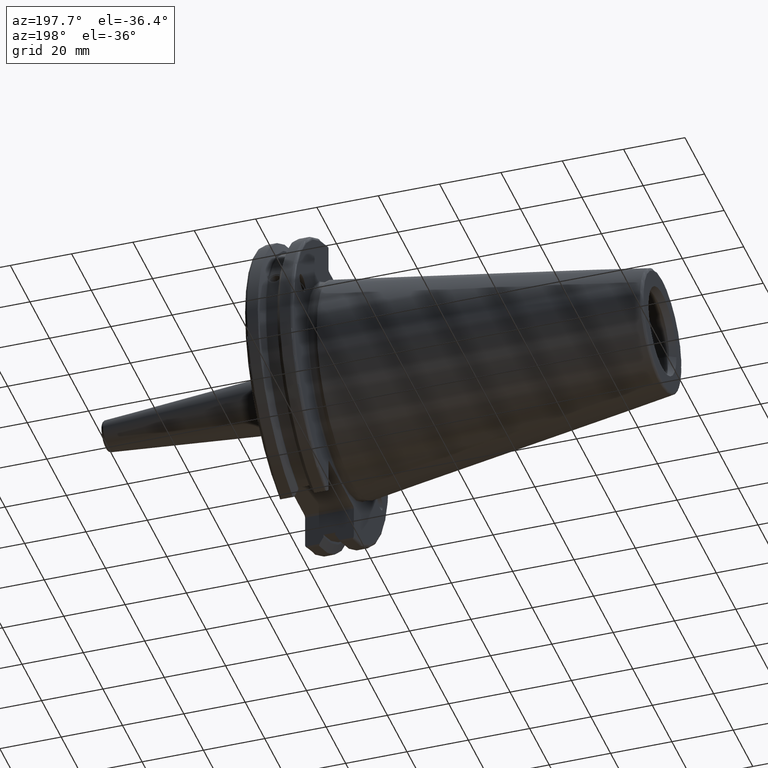
[diagram: clean part render]
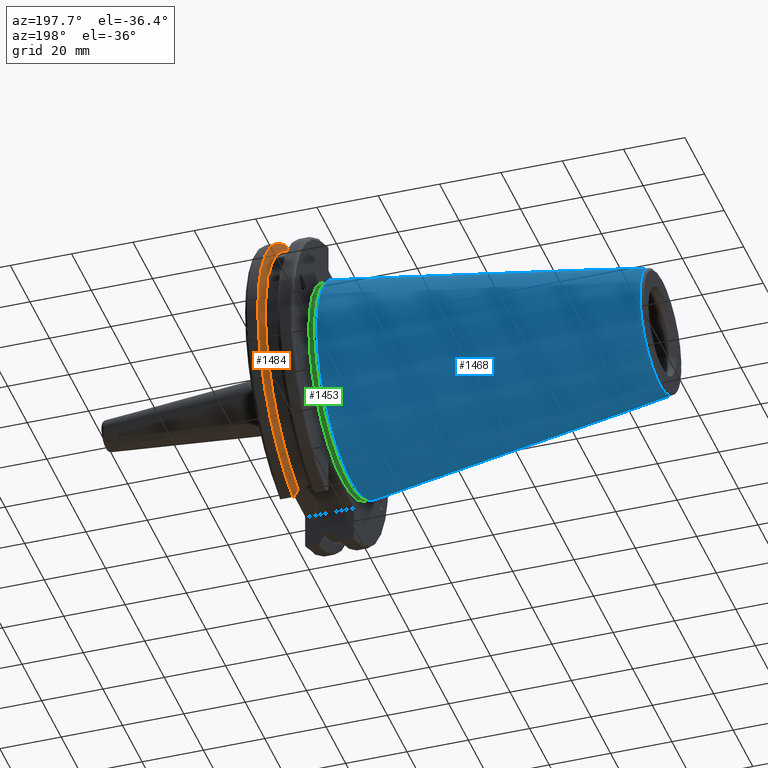
[diagram: same view with three faces highlighted in distinct colors, each labeled with its STEP entity id]
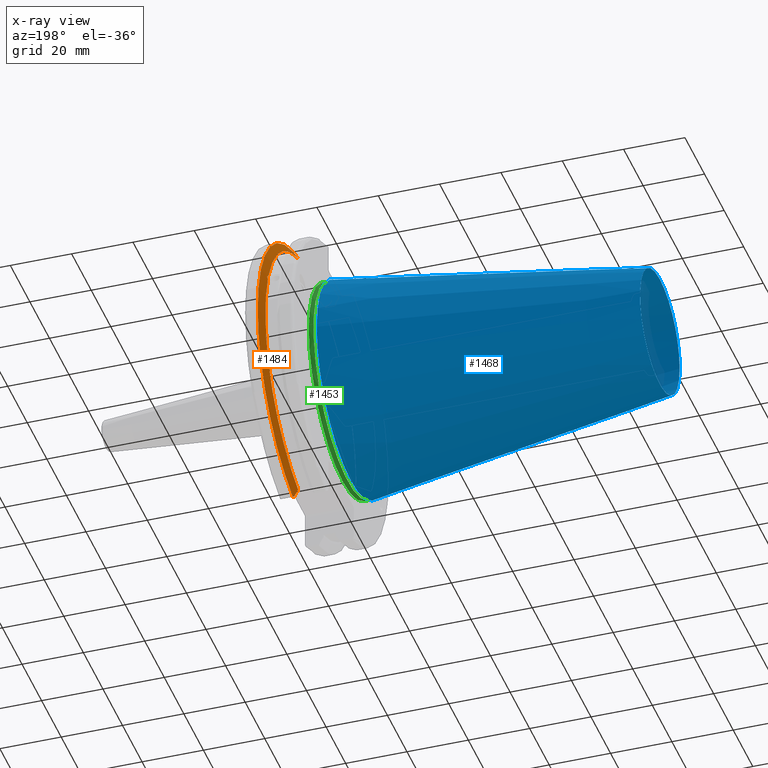
[diagram: x-ray of the same camera — body ghosted, the three highlighted faces saturated]
A machine part, auxiliary view with three faces highlighted in distinct colors.
The next image is the same camera in x-ray (body ghosted, the three faces saturated) — at least one of them is partly hidden behind the body in this view.
Their STEP definitions:

[orange] entity #1484 — the highlighted conical surface has half-angle 60 deg.
#23=(
BOUNDED_CURVE()
B_SPLINE_CURVE(2,(#2764,#2765,#2766),.UNSPECIFIED.,.F.,.F.)
B_SPLINE_CURVE_WITH_KNOTS((3,3),(0.325260944932521,0.390084992222202),
 .UNSPECIFIED.)
CURVE()
GEOMETRIC_REPRESENTATION_ITEM()
RATIONAL_B_SPLINE_CURVE((1.00019140645994,1.00011477674864,1.))
REPRESENTATION_ITEM('')
);
#24=(
BOUNDED_CURVE()
B_SPLINE_CURVE(2,(#2778,#2779,#2780),.UNSPECIFIED.,.F.,.F.)
B_SPLINE_CURVE_WITH_KNOTS((3,3),(0.0558332664532001,0.331657177124504),
 .UNSPECIFIED.)
CURVE()
GEOMETRIC_REPRESENTATION_ITEM()
RATIONAL_B_SPLINE_CURVE((1.00012873636632,1.00038235574022,1.))
REPRESENTATION_ITEM('')
);
#29=(
BOUNDED_CURVE()
B_SPLINE_CURVE(2,(#2943,#2944,#2945),.UNSPECIFIED.,.F.,.F.)
B_SPLINE_CURVE_WITH_KNOTS((3,3),(0.,0.275823910671402),.UNSPECIFIED.)
CURVE()
GEOMETRIC_REPRESENTATION_ITEM()
RATIONAL_B_SPLINE_CURVE((1.,1.00038235574129,1.00012873636668))
REPRESENTATION_ITEM('')
);
#30=(
BOUNDED_CURVE()
B_SPLINE_CURVE(2,(#2960,#2961,#2962),.UNSPECIFIED.,.F.,.F.)
B_SPLINE_CURVE_WITH_KNOTS((3,3),(0.,0.0648240472897064),.UNSPECIFIED.)
CURVE()
GEOMETRIC_REPRESENTATION_ITEM()
RATIONAL_B_SPLINE_CURVE((1.,1.00011477674844,1.00019140645961))
REPRESENTATION_ITEM('')
);
#50=B_SPLINE_CURVE_WITH_KNOTS('',3,(#2568,#2569,#2570,#2571,#2572,#2573,
#2574,#2575),.UNSPECIFIED.,.F.,.F.,(4,2,2,4),(0.426712868358719,0.441644498666905,
0.480313313223129,0.518982127779353),.UNSPECIFIED.);
#54=B_SPLINE_CURVE_WITH_KNOTS('',3,(#2630,#2631,#2632,#2633,#2634,#2635,
#2636,#2637),.UNSPECIFIED.,.F.,.F.,(4,2,2,4),(0.518982127779353,0.557650942335576,
0.5963197568918,0.611251387199989),.UNSPECIFIED.);
#344=CONICAL_SURFACE('',#1655,47.8172386482472,1.0471975511966);
#418=FACE_OUTER_BOUND('',#517,.T.);
#517=EDGE_LOOP('',(#1346,#1347,#1348,#1349,#1350,#1351,#1352,#1353,#1354));
#570=CIRCLE('',#1592,46.4219772964944);
#592=CIRCLE('',#1648,49.2125);
#595=CIRCLE('',#1656,46.4219772964944);
#670=VERTEX_POINT('',#2565);
#671=VERTEX_POINT('',#2567);
#678=VERTEX_POINT('',#2628);
#687=VERTEX_POINT('',#2670);
#713=VERTEX_POINT('',#2761);
#714=VERTEX_POINT('',#2763);
#739=VERTEX_POINT('',#2940);
#740=VERTEX_POINT('',#2942);
#743=VERTEX_POINT('',#2958);
#839=EDGE_CURVE('',#671,#670,#50,.T.);
#847=EDGE_CURVE('',#670,#678,#54,.T.);
#859=EDGE_CURVE('',#687,#671,#570,.T.);
#892=EDGE_CURVE('',#713,#714,#23,.T.);
#897=EDGE_CURVE('',#713,#687,#24,.T.);
#942=EDGE_CURVE('',#740,#739,#29,.T.);
#950=EDGE_CURVE('',#743,#739,#30,.T.);
#951=EDGE_CURVE('',#714,#743,#592,.T.);
#957=EDGE_CURVE('',#678,#740,#595,.T.);
#1346=ORIENTED_EDGE('',*,*,#839,.T.);
#1347=ORIENTED_EDGE('',*,*,#847,.T.);
#1348=ORIENTED_EDGE('',*,*,#957,.T.);
#1349=ORIENTED_EDGE('',*,*,#942,.T.);
#1350=ORIENTED_EDGE('',*,*,#950,.F.);
#1351=ORIENTED_EDGE('',*,*,#951,.F.);
#1352=ORIENTED_EDGE('',*,*,#892,.F.);
#1353=ORIENTED_EDGE('',*,*,#897,.T.);
#1354=ORIENTED_EDGE('',*,*,#859,.T.);
#1484=ADVANCED_FACE('',(#418),#344,.T.);
#1592=AXIS2_PLACEMENT_3D('',#2671,#1863,#1864);
#1648=AXIS2_PLACEMENT_3D('',#2964,#2020,#2021);
#1655=AXIS2_PLACEMENT_3D('',#2977,#2037,#2038);
#1656=AXIS2_PLACEMENT_3D('',#2978,#2039,#2040);
#1863=DIRECTION('center_axis',(1.,0.,0.));
#1864=DIRECTION('ref_axis',(0.,0.,-1.));
#2020=DIRECTION('center_axis',(1.,0.,0.));
#2021=DIRECTION('ref_axis',(0.,0.,-1.));
#2037=DIRECTION('center_axis',(1.,0.,0.));
#2038=DIRECTION('ref_axis',(0.,1.,0.));
#2039=DIRECTION('center_axis',(1.,0.,0.));
#2040=DIRECTION('ref_axis',(0.,0.,-1.));
#2565=CARTESIAN_POINT('',(13.2341,43.923494649906,15.9868446375166));
#2567=CARTESIAN_POINT('',(13.0491,43.9096390749305,15.0646464421033));
#2568=CARTESIAN_POINT('Ctrl Pts',(13.0491,43.9096390749305,15.0646464421033));
#2569=CARTESIAN_POINT('Ctrl Pts',(13.0660815609661,43.9250360001461,15.1104047527575));
#2570=CARTESIAN_POINT('Ctrl Pts',(13.0821132459668,43.9385582852181,15.1564111356409));
#2571=CARTESIAN_POINT('Ctrl Pts',(13.1358132615496,43.9797830409459,15.3217566390709));
#2572=CARTESIAN_POINT('Ctrl Pts',(13.1719838933644,43.9989016655819,15.4570249042868));
#2573=CARTESIAN_POINT('Ctrl Pts',(13.2212913174802,43.9931221605126,15.7289849146254));
#2574=CARTESIAN_POINT('Ctrl Pts',(13.2341,43.9675796948952,15.8657219718732));
#2575=CARTESIAN_POINT('Ctrl Pts',(13.2341,43.923494649906,15.9868446375166));
#2628=CARTESIAN_POINT('',(13.0491,43.3201030900029,16.684383248648));
#2630=CARTESIAN_POINT('Ctrl Pts',(13.2341,43.923494649906,15.9868446375166));
#2631=CARTESIAN_POINT('Ctrl Pts',(13.2341,43.8794096049169,16.10796730316));
#2632=CARTESIAN_POINT('Ctrl Pts',(13.2212913174802,43.8110833825827,16.2291323464527));
#2633=CARTESIAN_POINT('Ctrl Pts',(13.1719838933644,43.6406982153492,16.441180795372));
#2634=CARTESIAN_POINT('Ctrl Pts',(13.1358132615496,43.5391037343221,16.5325130832406));
#2635=CARTESIAN_POINT('Ctrl Pts',(13.0821132459668,43.4012416983557,16.6326763251437));
#2636=CARTESIAN_POINT('Ctrl Pts',(13.0660815609661,43.3613106941341,16.6592273018006));
#2637=CARTESIAN_POINT('Ctrl Pts',(13.0491,43.3201030900029,16.684383248648));
#2670=CARTESIAN_POINT('',(13.0491,12.95,-44.5791147973605));
#2671=CARTESIAN_POINT('Origin',(13.0491,0.,0.));
#2761=CARTESIAN_POINT('',(14.3818103943757,12.95,-46.9780755322918));
#2763=CARTESIAN_POINT('',(14.6602090340487,13.4317035994433,-47.3440544806494));
#2764=CARTESIAN_POINT('Ctrl Pts',(14.3818103943757,12.95,-46.9780755322918));
#2765=CARTESIAN_POINT('Ctrl Pts',(14.5199310333617,13.1896660169965,-47.1601640966264));
#2766=CARTESIAN_POINT('Ctrl Pts',(14.6602090340487,13.4317035994433,-47.3440544806494));
#2778=CARTESIAN_POINT('Ctrl Pts',(14.3818103943757,12.95,-46.9780755322918));
#2779=CARTESIAN_POINT('Ctrl Pts',(13.6979955094851,12.95,-45.7494966802933));
#2780=CARTESIAN_POINT('Ctrl Pts',(13.0491,12.95,-44.5791147973604));
#2940=CARTESIAN_POINT('',(14.3818103943757,12.95,46.9780755322918));
#2942=CARTESIAN_POINT('',(13.0491,12.95,44.5791147973604));
#2943=CARTESIAN_POINT('Ctrl Pts',(13.0491,12.95,44.5791147973604));
#2944=CARTESIAN_POINT('Ctrl Pts',(13.6979955094846,12.95,45.7494966802924));
#2945=CARTESIAN_POINT('Ctrl Pts',(14.3818103943757,12.95,46.9780755322918));
#2958=CARTESIAN_POINT('',(14.6602090340487,13.4317035994433,47.3440544806494));
#2960=CARTESIAN_POINT('Ctrl Pts',(14.6602090340487,13.4317035994433,47.3440544806494));
#2961=CARTESIAN_POINT('Ctrl Pts',(14.5199310333618,13.1896660169966,47.1601640966264));
#2962=CARTESIAN_POINT('Ctrl Pts',(14.3818103943757,12.95,46.9780755322918));
#2964=CARTESIAN_POINT('Origin',(14.6602090340487,0.,0.));
#2977=CARTESIAN_POINT('Origin',(13.8546545170244,0.,0.));
#2978=CARTESIAN_POINT('Origin',(13.0491,0.,0.));

[blue] entity #1468 — the highlighted conical surface has half-angle 8.297 deg.
#222=LINE('',#2928,#314);
#314=VECTOR('',#1984,27.5166666666666);
#342=CONICAL_SURFACE('',#1635,27.5166666666666,0.14481249823894);
#402=FACE_OUTER_BOUND('',#501,.T.);
#501=EDGE_LOOP('',(#1274,#1275,#1276,#1277,#1278));
#586=CIRCLE('',#1629,20.233121911427);
#587=CIRCLE('',#1630,20.233121911427);
#591=CIRCLE('',#1636,34.925);
#734=VERTEX_POINT('',#2915);
#735=VERTEX_POINT('',#2916);
#738=VERTEX_POINT('',#2926);
#929=EDGE_CURVE('',#734,#735,#586,.T.);
#930=EDGE_CURVE('',#735,#734,#587,.T.);
#934=EDGE_CURVE('',#738,#738,#591,.T.);
#935=EDGE_CURVE('',#738,#735,#222,.T.);
#1274=ORIENTED_EDGE('',*,*,#934,.F.);
#1275=ORIENTED_EDGE('',*,*,#935,.T.);
#1276=ORIENTED_EDGE('',*,*,#929,.F.);
#1277=ORIENTED_EDGE('',*,*,#930,.F.);
#1278=ORIENTED_EDGE('',*,*,#935,.F.);
#1468=ADVANCED_FACE('',(#402),#342,.T.);
#1629=AXIS2_PLACEMENT_3D('',#2917,#1968,#1969);
#1630=AXIS2_PLACEMENT_3D('',#2918,#1970,#1971);
#1635=AXIS2_PLACEMENT_3D('',#2925,#1980,#1981);
#1636=AXIS2_PLACEMENT_3D('',#2927,#1982,#1983);
#1968=DIRECTION('center_axis',(-1.,0.,0.));
#1969=DIRECTION('ref_axis',(0.,-1.,3.06161699786838E-17));
#1970=DIRECTION('center_axis',(-1.,0.,0.));
#1971=DIRECTION('ref_axis',(0.,-1.,3.06161699786838E-17));
#1980=DIRECTION('center_axis',(1.,0.,0.));
#1981=DIRECTION('ref_axis',(0.,1.,0.));
#1982=DIRECTION('center_axis',(1.,0.,0.));
#1983=DIRECTION('ref_axis',(0.,0.,-1.));
#1984=DIRECTION('',(-0.989532981063281,0.144306893071729,1.76724974695192E-17));
#2915=CARTESIAN_POINT('',(-100.744306893072,-2.47784279855872E-15,20.233121911427));
#2916=CARTESIAN_POINT('',(-100.744306893072,-20.233121911427,-2.47784279855872E-15));
#2917=CARTESIAN_POINT('Origin',(-100.744306893072,0.,-3.09730349819841E-15));
#2918=CARTESIAN_POINT('Origin',(-100.744306893072,0.,-3.09730349819841E-15));
#2925=CARTESIAN_POINT('Origin',(-50.8,0.,0.));
#2926=CARTESIAN_POINT('',(-8.88178419700125E-15,-34.925,-4.27707894602213E-15));
#2927=CARTESIAN_POINT('Origin',(0.,0.,0.));
#2928=CARTESIAN_POINT('',(-50.8,-27.5166666666666,-3.3698197756538E-15));

[green] entity #1453 — the highlighted cylindrical surface (bore or boss wall) has radius 34.625 mm, axis along (1, 0, 0).
#88=CYLINDRICAL_SURFACE('',#1609,34.625);
#205=LINE('',#2724,#297);
#297=VECTOR('',#1913,34.625);
#387=FACE_OUTER_BOUND('',#485,.T.);
#485=EDGE_LOOP('',(#1182,#1183,#1184,#1185,#1186));
#574=CIRCLE('',#1602,34.625);
#577=CIRCLE('',#1605,34.625);
#580=CIRCLE('',#1610,34.625);
#693=VERTEX_POINT('',#2690);
#694=VERTEX_POINT('',#2691);
#708=VERTEX_POINT('',#2723);
#868=EDGE_CURVE('',#693,#694,#574,.T.);
#871=EDGE_CURVE('',#694,#693,#577,.T.);
#884=EDGE_CURVE('',#693,#708,#205,.T.);
#885=EDGE_CURVE('',#708,#708,#580,.T.);
#1182=ORIENTED_EDGE('',*,*,#868,.F.);
#1183=ORIENTED_EDGE('',*,*,#884,.T.);
#1184=ORIENTED_EDGE('',*,*,#885,.T.);
#1185=ORIENTED_EDGE('',*,*,#884,.F.);
#1186=ORIENTED_EDGE('',*,*,#871,.F.);
#1453=ADVANCED_FACE('',(#387),#88,.T.);
#1602=AXIS2_PLACEMENT_3D('',#2692,#1887,#1888);
#1605=AXIS2_PLACEMENT_3D('',#2696,#1893,#1894);
#1609=AXIS2_PLACEMENT_3D('',#2722,#1911,#1912);
#1610=AXIS2_PLACEMENT_3D('',#2725,#1914,#1915);
#1887=DIRECTION('center_axis',(1.,0.,0.));
#1888=DIRECTION('ref_axis',(0.,-1.,1.83697019872103E-16));
#1893=DIRECTION('center_axis',(1.,0.,0.));
#1894=DIRECTION('ref_axis',(0.,-1.,1.83697019872103E-16));
#1911=DIRECTION('center_axis',(1.,0.,0.));
#1912=DIRECTION('ref_axis',(0.,1.,0.));
#1913=DIRECTION('',(-1.,0.,0.));
#1914=DIRECTION('center_axis',(1.,0.,0.));
#1915=DIRECTION('ref_axis',(0.,0.,-1.));
#2690=CARTESIAN_POINT('',(2.675,-34.625,-4.24033954204771E-15));
#2691=CARTESIAN_POINT('',(2.675,-4.24033954204771E-15,34.625));
#2692=CARTESIAN_POINT('Origin',(2.675,0.,0.));
#2696=CARTESIAN_POINT('Origin',(2.675,0.,0.));
#2722=CARTESIAN_POINT('Origin',(2.14730762113532,0.,0.));
#2723=CARTESIAN_POINT('',(1.11961524227064,-34.625,-4.24033954204771E-15));
#2724=CARTESIAN_POINT('',(2.14730762113532,-34.625,-4.24033954204771E-15));
#2725=CARTESIAN_POINT('Origin',(1.11961524227064,0.,0.));